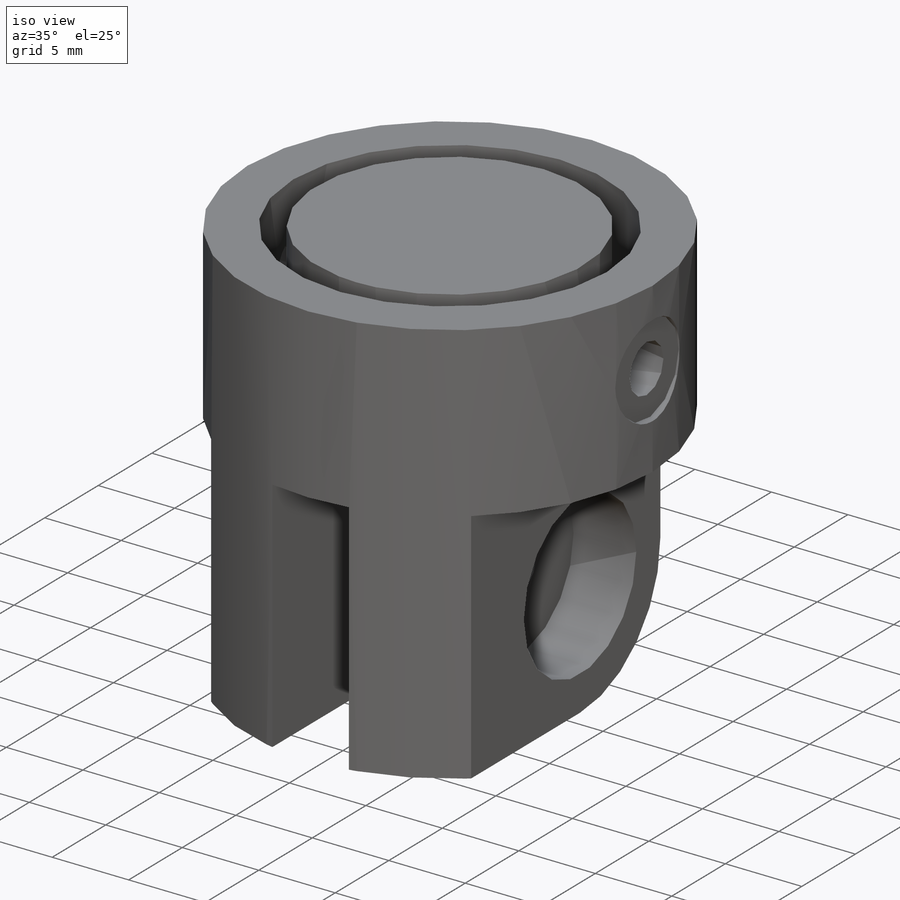
[diagram: iso view]
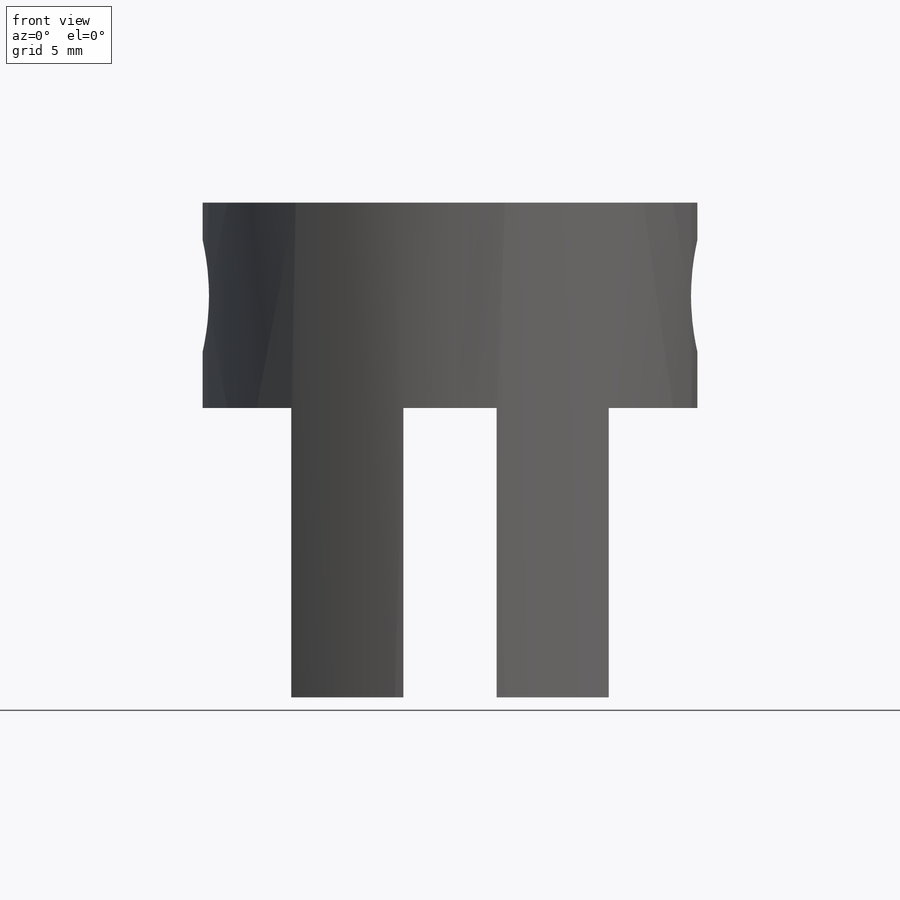
[diagram: front view]
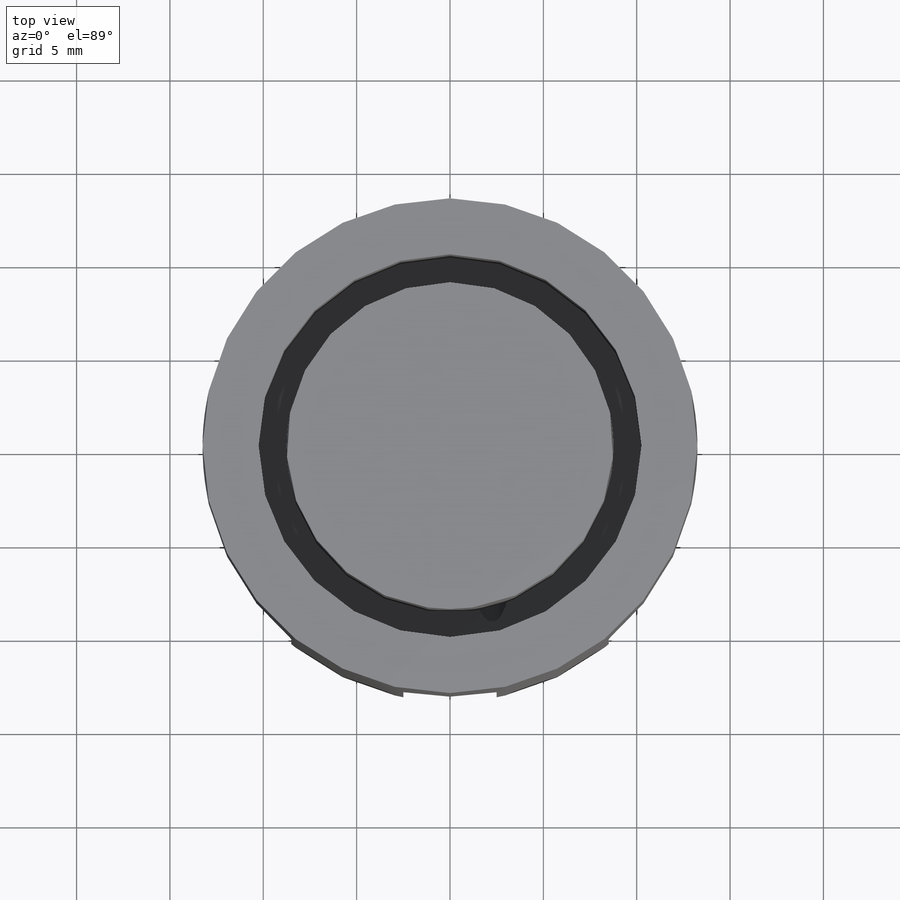
[diagram: top view]
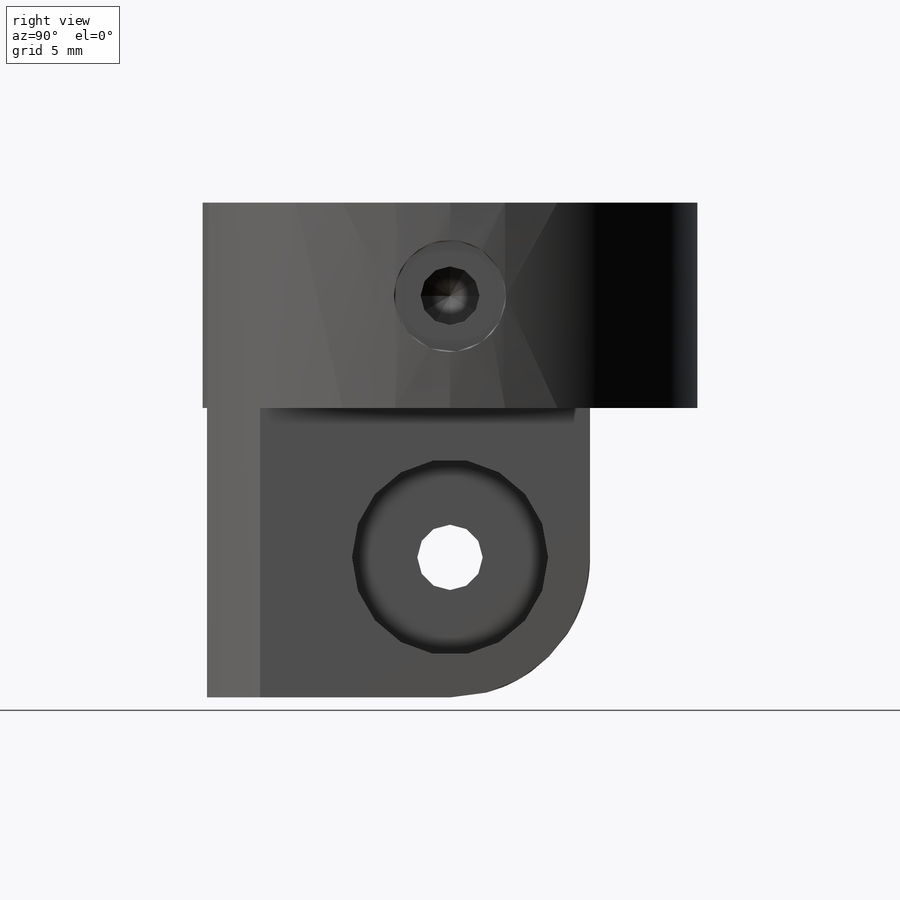
[diagram: right view]
SOLIDWORKS PART (.sldprt)
format: sldprt  version: not decoded by parser v0  size: 486,912 bytes
history: native  units: mm
features: sketch x15, cut_extrude x9, plane x8, extrude x3, mirror x2, material x1, hole x1 (+13 scaffold rows collapsed)
feature tree (52):
  scaffold x13  (default folders/planes/origin — collapsed)
  material  "PLA Black"
  sketch  "Sketch1"  dims[c1.D1=21.0mm c1.D2=~29.839096mm c2.D1=21.0mm c2.D3=~16.305082mm c2.D4=~16.992116mm c3.D1=18.8mm c3.D3=19.0mm c3.D2=3.0mm c4.D1=0.6mm c4.D3=2.0mm c4.D4=0.6mm c5.D1=1.5mm]
  extrude  "Boss-Extrude1"  Depth=10mm
  sketch  "Sketch3"
  extrude  "Boss-Extrude2"  Depth=1mm
  sketch  "Sketch4"  dims[c1.D1=6.0mm c1.D2=5.0mm c1.D3=7.5mm c2.D1=6.0mm]
  extrude  "Boss-Extrude3"  Depth=15.5mm
  sketch  "Sketch5"  dims[D1=3.5mm]
  cut_extrude  "Cut-Extrude1"  Depth=10mm
  sketch  "Sketch6"  dims[D1=10.5mm]
  cut_extrude  "Cut-Extrude2"  Depth=4.1mm
  mirror  "Mirror1"
  plane  "Plane9"  Offset=2.25mm
  sketch  "Sketch7"  dims[c1.D1=7.2mm c1.D2=~17.19437mm c2.D2=~44.365629deg c2.D3=8.0mm c3.D2=~6.18587mm c4.D2=~31.815843deg]
  plane  "Plane1"
  plane  "Plane2"
  plane  "Plane3"
  plane  "Plane5"
  plane  "Plane6"
  plane  "Plane7"
  sketch  "Sketch8"  dims[D1=1.65mm]
  cut_extrude  "Cut-Extrude5"  Depth=5.5mm
  sketch  "Sketch9"  dims[D1=1.65mm]
  cut_extrude  "Cut-Extrude3"  Depth=5.5mm
  sketch  "Sketch10"  dims[D1=1.65mm]
  sketch  "Sketch11"  dims[D1=1.65mm]
  sketch  "Sketch12"  dims[D1=1.65mm]
  sketch  "Sketch14"  dims[D1=1.65mm]
  cut_extrude  "Cut-Extrude6"  Depth=5.5mm
  cut_extrude  "Cut-Extrude7"  Depth=5.5mm
  cut_extrude  "Cut-Extrude8"  Depth=5.5mm
  cut_extrude  "Cut-Extrude9"  Depth=5.5mm
  plane  "Plane8"
  hole  "Tap Drill for M3 Helicoil1"  Diameter=3.15mm Depth=6mm
  sketch  "Sketch17"
  sketch  "Sketch18"  dims[hole-wizard template sketch: 46 standard entries collapsed; hole parameters kept: c15.Hole Dia.=3.15mm c15.Hole Depth=6.0mm c15.D3=~14.816244mm c15.Drill Angle=118.0deg]
  sketch  "Sketch20"  dims[D1=6.0mm]
  cut_extrude  "Cut-Extrude10"  Depth=0.4mm
  mirror  "Mirror2"
decode coverage: 26 of 30 modeling features carry decoded parameters
note: ~ marks probable driven/reference dimensions
note: suppression state not decoded; provenance and decode notes live in map.json
